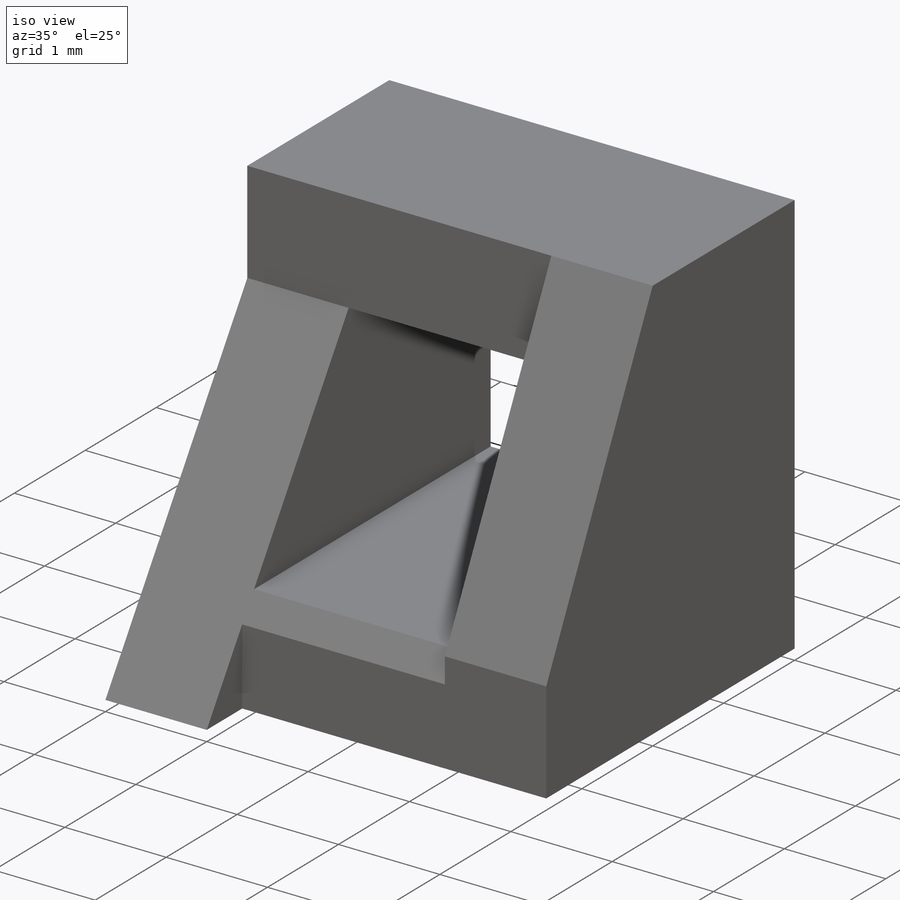
[diagram: iso view]
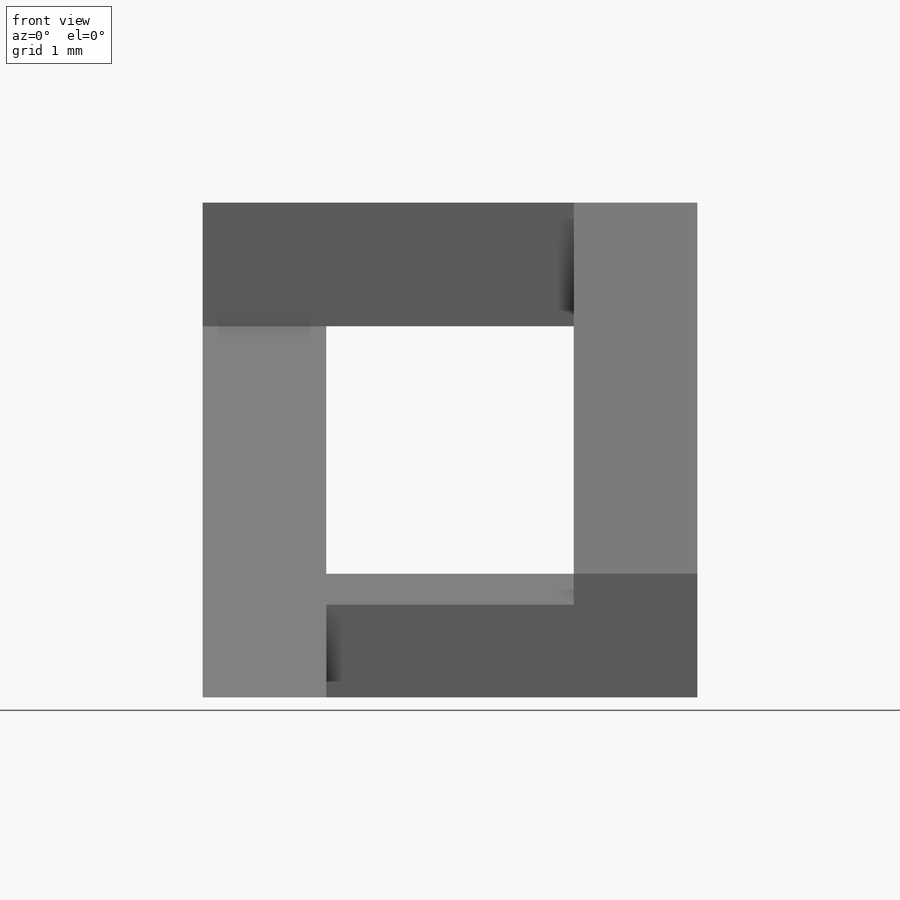
[diagram: front view]
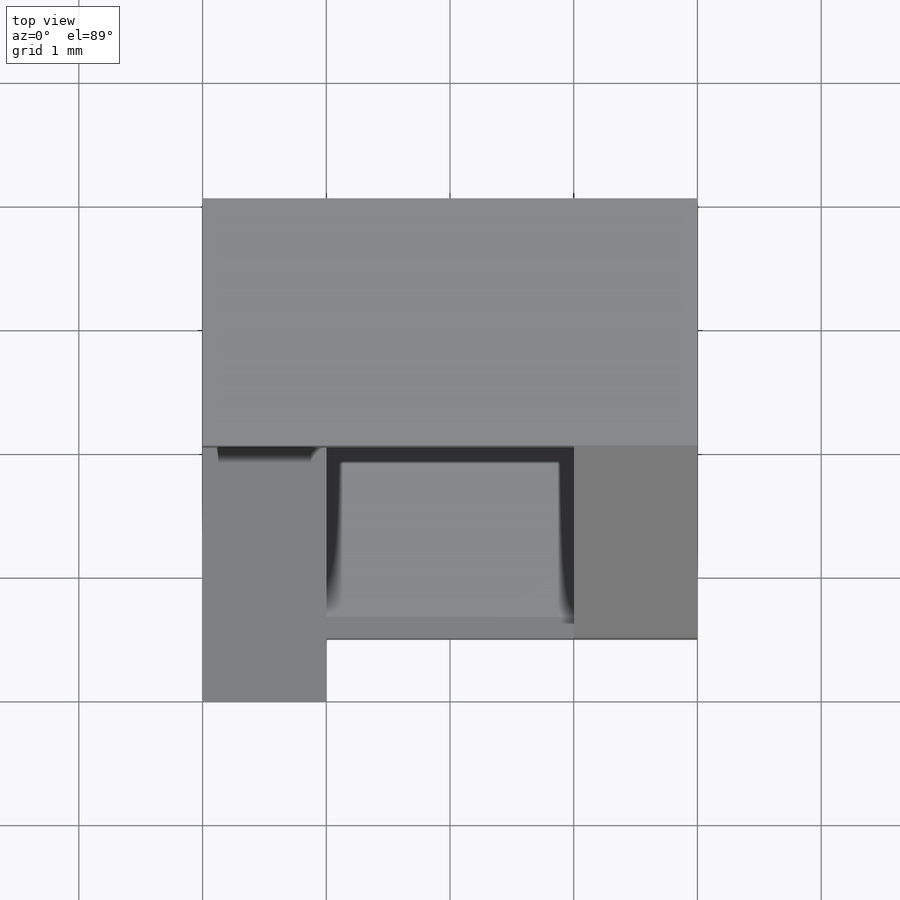
[diagram: top view]
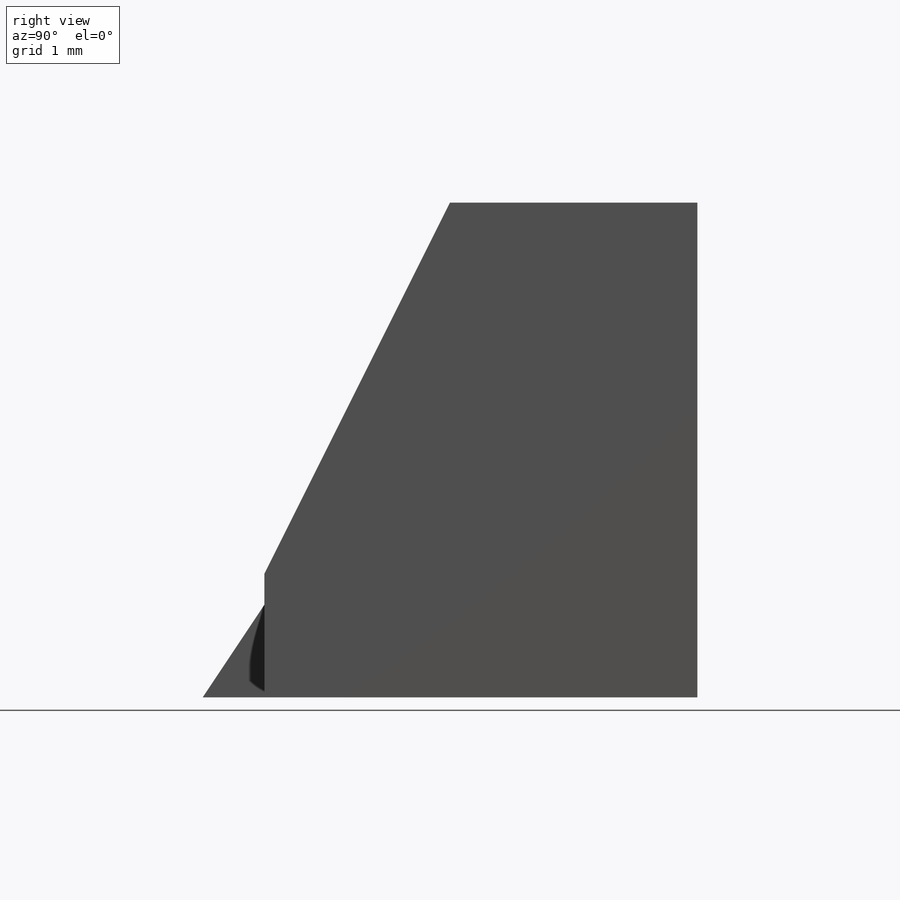
[diagram: right view]
SOLIDWORKS PART (.sldprt)
format: sldprt  version: not decoded by parser v0  size: 179,712 bytes
history: native  units: mm
features: sketch x5, cut_extrude x4, material x1, extrude x1 (+13 scaffold rows collapsed)
feature tree (24):
  scaffold x13  (default folders/planes/origin — collapsed)
  material  "Material <not specified>"
  sketch  "Sketch1"  dims[c1.D1=4.0mm c1.D2=2.0mm c1.D3=~0.804348mm c1.D4=1.0mm c2.D3=1.0mm c2.D4=4.0mm c2.D5=2.0mm c2.D6=1.0mm]
  extrude  "Boss-Extrude1"  Depth=4mm
  sketch  "Sketch2"
  cut_extrude  "Cut-Extrude1"  Depth=4mm
  sketch  "Sketch3"  dims[D1=1.0mm]
  cut_extrude  "Cut-Extrude2"  Depth=3mm
  sketch  "Sketch4"
  cut_extrude  "Cut-Extrude3"  Depth=3mm
  sketch  "Sketch6"  dims[D1=1.0mm]
  cut_extrude  "Cut-Extrude5"  Depth=3mm
decode coverage: 8 of 10 modeling features carry decoded parameters
note: ~ marks probable driven/reference dimensions
note: suppression state not decoded; provenance and decode notes live in map.json
